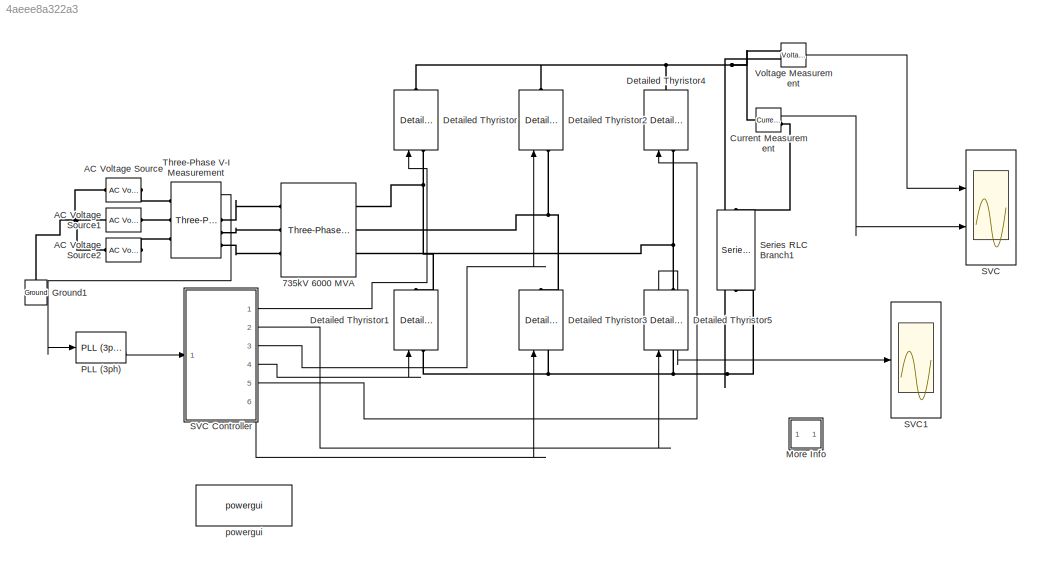
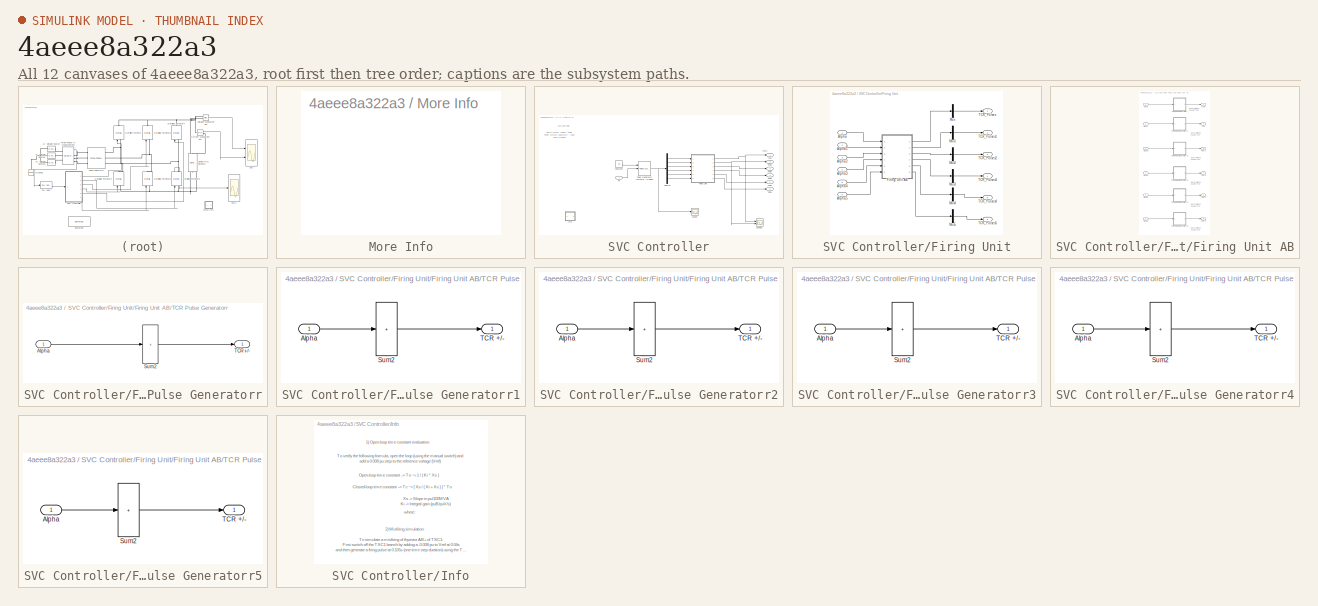
[diagram: thumbnail index - all 12 canvases of the model, root first then tree order]
MODEL slx_4aeee8a322a3
KIND model
CONFIG AbsTol = 1e-4
CONFIG EnableMultiTasking = off
CONFIG FixedStep = Ts
CONFIG MaxStep = Ts
CONFIG MinStep = auto
CONFIG PreLoadFcn = Ts=50e-6;  
CONFIG RelTol = 1e-4
CONFIG SampleTimeConstraint = Unconstrained
CONFIG Solver = VariableStepAuto
CONFIG SolverName = VariableStepAuto
CONFIG StartTime = 0.0
CONFIG StopTime = 0.3
BLOCK [Reference] 735kV 6000 MVA   REF=powerlib/Elements/Three-Phase
Series RLC Branch
  AttributesFormatString = \n
  Ports = [0, 0, 0, 0, 0, 3, 3]
  SourceBlock = powerlib/Elements/Three-Phase\nSeries RLC Branch
  SourceProductBaseCode = PS
  SourceType = Three-Phase Series RLC Branch
BLOCK [Reference] AC Voltage Source  REF=powerlib/Electrical
Sources/AC Voltage Source
  Ports = [0, 0, 0, 0, 0, 1, 1]
  SourceBlock = powerlib/Electrical\nSources/AC Voltage Source
  SourceProductBaseCode = PS
  SourceType = AC Voltage Source
BLOCK [Reference] AC Voltage Source1  REF=powerlib/Electrical
Sources/AC Voltage Source
  Ports = [0, 0, 0, 0, 0, 1, 1]
  SourceBlock = powerlib/Electrical\nSources/AC Voltage Source
  SourceProductBaseCode = PS
  SourceType = AC Voltage Source
BLOCK [Reference] AC Voltage Source2  REF=powerlib/Electrical
Sources/AC Voltage Source
  Ports = [0, 0, 0, 0, 0, 1, 1]
  SourceBlock = powerlib/Electrical\nSources/AC Voltage Source
  SourceProductBaseCode = PS
  SourceType = AC Voltage Source
BLOCK [Reference] Current Measurement  REF=powerlib/Measurements/Current Measurement
  Ports = [0, 1, 0, 0, 0, 1, 1]
  SourceBlock = powerlib/Measurements/Current Measurement
  SourceProductBaseCode = PS
  SourceType = Current Measurement
  UserDataPersistent = on
BLOCK [Reference] Detailed Thyristor  REF=powerlib/Power
Electronics/Detailed Thyristor
  Ports = [1, 0, 0, 0, 0, 1, 1]
  SourceBlock = powerlib/Power\nElectronics/Detailed Thyristor
  SourceProductBaseCode = PS
  SourceType = Detailed Thyristor
BLOCK [Reference] Detailed Thyristor1  REF=powerlib/Power
Electronics/Detailed Thyristor
  Ports = [1, 0, 0, 0, 0, 1, 1]
  SourceBlock = powerlib/Power\nElectronics/Detailed Thyristor
  SourceProductBaseCode = PS
  SourceType = Detailed Thyristor
BLOCK [Reference] Detailed Thyristor2  REF=powerlib/Power
Electronics/Detailed Thyristor
  Ports = [1, 0, 0, 0, 0, 1, 1]
  SourceBlock = powerlib/Power\nElectronics/Detailed Thyristor
  SourceProductBaseCode = PS
  SourceType = Detailed Thyristor
BLOCK [Reference] Detailed Thyristor3  REF=powerlib/Power
Electronics/Detailed Thyristor
  Ports = [1, 0, 0, 0, 0, 1, 1]
  SourceBlock = powerlib/Power\nElectronics/Detailed Thyristor
  SourceProductBaseCode = PS
  SourceType = Detailed Thyristor
BLOCK [Reference] Detailed Thyristor4  REF=powerlib/Power
Electronics/Detailed Thyristor
  Ports = [1, 0, 0, 0, 0, 1, 1]
  SourceBlock = powerlib/Power\nElectronics/Detailed Thyristor
  SourceProductBaseCode = PS
  SourceType = Detailed Thyristor
BLOCK [Reference] Detailed Thyristor5  REF=powerlib/Power
Electronics/Detailed Thyristor
  Ports = [1, 1, 0, 0, 0, 1, 1]
  SourceBlock = powerlib/Power\nElectronics/Detailed Thyristor
  SourceProductBaseCode = PS
  SourceType = Detailed Thyristor
BLOCK [Reference] Ground1  REF=powerlib/Elements/Ground
  Ports = [0, 0, 0, 0, 0, 1]
  SourceBlock = powerlib/Elements/Ground
  SourceProductBaseCode = PS
  SourceType = Ground
BLOCK [SubSystem] More Info
  OpenFcn = showdemo(bdroot(gcb))
  Ports = []
  RequestExecContextInheritance = off
BLOCK [Reference] PLL (3ph)  REF=powerlib_meascontrol/PLL/PLL
(3ph)
  Ports = [1, 2]
  SourceBlock = powerlib_meascontrol/PLL/PLL\n(3ph)
  SourceProductBaseCode = PS
  SourceType = PLL (3ph)
BLOCK [Scope] SVC
  Floating = off
  NumInputPorts = 2
  Ports = [2]
  ScopeSpecificationString = Simulink.scopes.TimeScopeBlockCfg('CurrentConfiguration', extmgr.ConfigurationSet(extmgr.Configuration('Core','General UI',true),extmgr.Configuration('Core','Source UI',true),extmgr.Configuration('Sources','WiredSimulink',true,'DataLogging',true,'DataLoggingVariableName','VIabc_Prim','DataLoggingSaveFormat','StructureWithTime','SampleTime','Ts','DataLoggingDecimation','1'),extmgr.Configuration('Vi...<+2355ch>
BLOCK [SubSystem] SVC Controller
  Ports = [1, 6]
  RequestExecContextInheritance = off
BLOCK [Constant] SVC Controller/Constant
  Value = 30
BLOCK [Demux] SVC Controller/Demux
  Outputs = 6
  Ports = [1, 6]
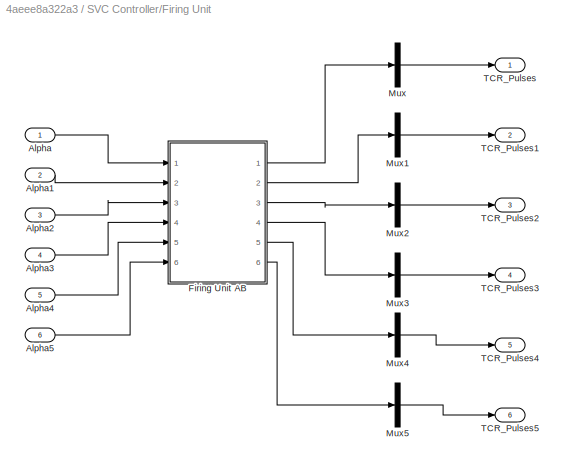
BLOCK [SubSystem] SVC Controller/Firing Unit
  Ports = [6, 6]
  RequestExecContextInheritance = off
BLOCK [Inport] SVC Controller/Firing Unit/Alpha
  PortDimensions = 1
BLOCK [Inport] SVC Controller/Firing Unit/Alpha1
  Port = 2
  PortDimensions = 1
BLOCK [Inport] SVC Controller/Firing Unit/Alpha2
  Port = 3
  PortDimensions = 1
BLOCK [Inport] SVC Controller/Firing Unit/Alpha3
  Port = 4
  PortDimensions = 1
BLOCK [Inport] SVC Controller/Firing Unit/Alpha4
  Port = 5
  PortDimensions = 1
BLOCK [Inport] SVC Controller/Firing Unit/Alpha5
  Port = 6
  PortDimensions = 1
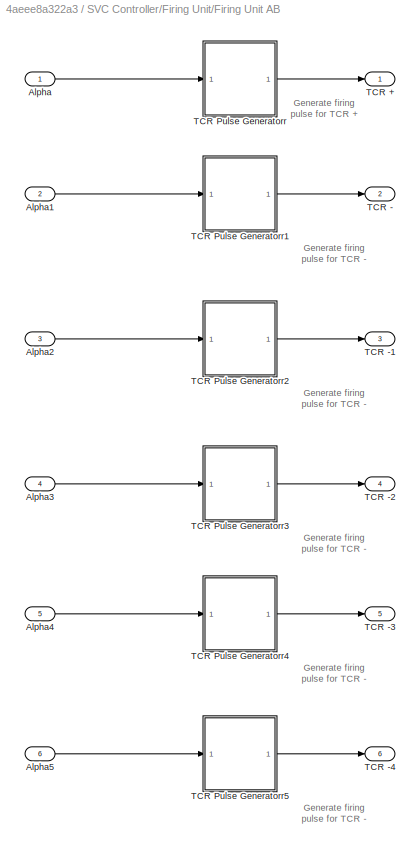
BLOCK [SubSystem] SVC Controller/Firing Unit/Firing Unit AB
  Ports = [6, 6]
  RequestExecContextInheritance = off
BLOCK [Inport] SVC Controller/Firing Unit/Firing Unit AB/Alpha
  PortDimensions = 1
BLOCK [Inport] SVC Controller/Firing Unit/Firing Unit AB/Alpha1
  Port = 2
  PortDimensions = 1
BLOCK [Inport] SVC Controller/Firing Unit/Firing Unit AB/Alpha2
  Port = 3
  PortDimensions = 1
BLOCK [Inport] SVC Controller/Firing Unit/Firing Unit AB/Alpha3
  Port = 4
  PortDimensions = 1
BLOCK [Inport] SVC Controller/Firing Unit/Firing Unit AB/Alpha4
  Port = 5
  PortDimensions = 1
BLOCK [Inport] SVC Controller/Firing Unit/Firing Unit AB/Alpha5
  Port = 6
  PortDimensions = 1
BLOCK [Outport] SVC Controller/Firing Unit/Firing Unit AB/TCR +
  VectorParamsAs1DForOutWhenUnconnected = off
BLOCK [Outport] SVC Controller/Firing Unit/Firing Unit AB/TCR -
  Port = 2
  VectorParamsAs1DForOutWhenUnconnected = off
BLOCK [Outport] SVC Controller/Firing Unit/Firing Unit AB/TCR -1
  Port = 3
  VectorParamsAs1DForOutWhenUnconnected = off
BLOCK [Outport] SVC Controller/Firing Unit/Firing Unit AB/TCR -2
  Port = 4
  VectorParamsAs1DForOutWhenUnconnected = off
BLOCK [Outport] SVC Controller/Firing Unit/Firing Unit AB/TCR -3
  Port = 5
  VectorParamsAs1DForOutWhenUnconnected = off
BLOCK [Outport] SVC Controller/Firing Unit/Firing Unit AB/TCR -4
  Port = 6
  VectorParamsAs1DForOutWhenUnconnected = off
BLOCK [SubSystem] SVC Controller/Firing Unit/Firing Unit AB/TCR Pulse Generatorr
  Ports = [1, 1]
  RequestExecContextInheritance = off
BLOCK [Inport] SVC Controller/Firing Unit/Firing Unit AB/TCR Pulse Generatorr/Alpha
  PortDimensions = 1
BLOCK [Sum] SVC Controller/Firing Unit/Firing Unit AB/TCR Pulse Generatorr/Sum2
  IconShape = rectangular
  InputSameDT = on
  Inputs = +
  OutDataTypeStr = Inherit: Same as first input
  Ports = [1, 1]
  SaturateOnIntegerOverflow = on
BLOCK [Outport] SVC Controller/Firing Unit/Firing Unit AB/TCR Pulse Generatorr/TCR +//-
  VectorParamsAs1DForOutWhenUnconnected = off
BLOCK [SubSystem] SVC Controller/Firing Unit/Firing Unit AB/TCR Pulse Generatorr1
  Ports = [1, 1]
  RequestExecContextInheritance = off
BLOCK [Inport] SVC Controller/Firing Unit/Firing Unit AB/TCR Pulse Generatorr1/Alpha
  PortDimensions = 1
BLOCK [Sum] SVC Controller/Firing Unit/Firing Unit AB/TCR Pulse Generatorr1/Sum2
  IconShape = rectangular
  InputSameDT = on
  Inputs = +
  OutDataTypeStr = Inherit: Same as first input
  Ports = [1, 1]
  SaturateOnIntegerOverflow = on
BLOCK [Outport] SVC Controller/Firing Unit/Firing Unit AB/TCR Pulse Generatorr1/TCR +//-
  VectorParamsAs1DForOutWhenUnconnected = off
BLOCK [SubSystem] SVC Controller/Firing Unit/Firing Unit AB/TCR Pulse Generatorr2
  Ports = [1, 1]
  RequestExecContextInheritance = off
BLOCK [Inport] SVC Controller/Firing Unit/Firing Unit AB/TCR Pulse Generatorr2/Alpha
  PortDimensions = 1
BLOCK [Sum] SVC Controller/Firing Unit/Firing Unit AB/TCR Pulse Generatorr2/Sum2
  IconShape = rectangular
  InputSameDT = on
  Inputs = +
  OutDataTypeStr = Inherit: Same as first input
  Ports = [1, 1]
  SaturateOnIntegerOverflow = on
BLOCK [Outport] SVC Controller/Firing Unit/Firing Unit AB/TCR Pulse Generatorr2/TCR +//-
  VectorParamsAs1DForOutWhenUnconnected = off
BLOCK [SubSystem] SVC Controller/Firing Unit/Firing Unit AB/TCR Pulse Generatorr3
  Ports = [1, 1]
  RequestExecContextInheritance = off
BLOCK [Inport] SVC Controller/Firing Unit/Firing Unit AB/TCR Pulse Generatorr3/Alpha
  PortDimensions = 1
BLOCK [Sum] SVC Controller/Firing Unit/Firing Unit AB/TCR Pulse Generatorr3/Sum2
  IconShape = rectangular
  InputSameDT = on
  Inputs = +
  OutDataTypeStr = Inherit: Same as first input
  Ports = [1, 1]
  SaturateOnIntegerOverflow = on
BLOCK [Outport] SVC Controller/Firing Unit/Firing Unit AB/TCR Pulse Generatorr3/TCR +//-
  VectorParamsAs1DForOutWhenUnconnected = off
BLOCK [SubSystem] SVC Controller/Firing Unit/Firing Unit AB/TCR Pulse Generatorr4
  Ports = [1, 1]
  RequestExecContextInheritance = off
BLOCK [Inport] SVC Controller/Firing Unit/Firing Unit AB/TCR Pulse Generatorr4/Alpha
  PortDimensions = 1
BLOCK [Sum] SVC Controller/Firing Unit/Firing Unit AB/TCR Pulse Generatorr4/Sum2
  IconShape = rectangular
  InputSameDT = on
  Inputs = +
  OutDataTypeStr = Inherit: Same as first input
  Ports = [1, 1]
  SaturateOnIntegerOverflow = on
BLOCK [Outport] SVC Controller/Firing Unit/Firing Unit AB/TCR Pulse Generatorr4/TCR +//-
  VectorParamsAs1DForOutWhenUnconnected = off
BLOCK [SubSystem] SVC Controller/Firing Unit/Firing Unit AB/TCR Pulse Generatorr5
  Ports = [1, 1]
  RequestExecContextInheritance = off
BLOCK [Inport] SVC Controller/Firing Unit/Firing Unit AB/TCR Pulse Generatorr5/Alpha
  PortDimensions = 1
BLOCK [Sum] SVC Controller/Firing Unit/Firing Unit AB/TCR Pulse Generatorr5/Sum2
  IconShape = rectangular
  InputSameDT = on
  Inputs = +
  OutDataTypeStr = Inherit: Same as first input
  Ports = [1, 1]
  SaturateOnIntegerOverflow = on
BLOCK [Outport] SVC Controller/Firing Unit/Firing Unit AB/TCR Pulse Generatorr5/TCR +//-
  VectorParamsAs1DForOutWhenUnconnected = off
BLOCK [Mux] SVC Controller/Firing Unit/Mux
  DisplayOption = bar
  Inputs = 1
  Ports = [1, 1]
BLOCK [Mux] SVC Controller/Firing Unit/Mux1
  DisplayOption = bar
  Inputs = 1
  Ports = [1, 1]
BLOCK [Mux] SVC Controller/Firing Unit/Mux2
  DisplayOption = bar
  Inputs = 1
  Ports = [1, 1]
BLOCK [Mux] SVC Controller/Firing Unit/Mux3
  DisplayOption = bar
  Inputs = 1
  Ports = [1, 1]
BLOCK [Mux] SVC Controller/Firing Unit/Mux4
  DisplayOption = bar
  Inputs = 1
  Ports = [1, 1]
BLOCK [Mux] SVC Controller/Firing Unit/Mux5
  DisplayOption = bar
  Inputs = 1
  Ports = [1, 1]
BLOCK [Outport] SVC Controller/Firing Unit/TCR_Pulses
  VectorParamsAs1DForOutWhenUnconnected = off
BLOCK [Outport] SVC Controller/Firing Unit/TCR_Pulses1
  Port = 2
  VectorParamsAs1DForOutWhenUnconnected = off
BLOCK [Outport] SVC Controller/Firing Unit/TCR_Pulses2
  Port = 3
  VectorParamsAs1DForOutWhenUnconnected = off
BLOCK [Outport] SVC Controller/Firing Unit/TCR_Pulses3
  Port = 4
  VectorParamsAs1DForOutWhenUnconnected = off
BLOCK [Outport] SVC Controller/Firing Unit/TCR_Pulses4
  Port = 5
  VectorParamsAs1DForOutWhenUnconnected = off
BLOCK [Outport] SVC Controller/Firing Unit/TCR_Pulses5
  Port = 6
  VectorParamsAs1DForOutWhenUnconnected = off
BLOCK [SubSystem] SVC Controller/Info
  Ports = []
  RequestExecContextInheritance = off
BLOCK [Reference] SVC Controller/Pulse Generator (Thyristor, 6-Pulse)  REF=powerlib_meascontrol/Pulse & Signal
Generators/Pulse Generator
(Thyristor, 12-Pulse)
  Ports = [3, 1]
  SourceBlock = powerlib_meascontrol/Pulse & Signal\nGenerators/Pulse Generator\n(Thyristor, 12-Pulse)
  SourceProductBaseCode = PS
  SourceType = Pulse Generator (Thyristor)
BLOCK [Scope] SVC Controller/Scope
  Floating = off
  NumInputPorts = 1
  Ports = [1]
  ScopeSpecificationString = Simulink.scopes.TimeScopeBlockCfg('CurrentConfiguration', extmgr.ConfigurationSet(extmgr.Configuration('Core','General UI',true),extmgr.Configuration('Core','Source UI',true),extmgr.Configuration('Sources','WiredSimulink',true,'DataLoggingVariableName','ScopeData1'),extmgr.Configuration('Visuals','Time Domain',true,'SerializedDisplays',{struct('MinYLimReal','-1.00000','MaxYLimReal','1.00000','YLab...<+1673ch>
BLOCK [Scope] SVC Controller/Scope1
  Floating = off
  NumInputPorts = 2
  Ports = [2]
  ScopeSpecificationString = Simulink.scopes.TimeScopeBlockCfg('CurrentConfiguration', extmgr.ConfigurationSet(extmgr.Configuration('Core','General UI',true),extmgr.Configuration('Core','Source UI',true),extmgr.Configuration('Sources','WiredSimulink',true,'DataLoggingVariableName','ScopeData2'),extmgr.Configuration('Visuals','Time Domain',true,'SerializedDisplays',{struct('MinYLimReal','-0.125','MaxYLimReal','1.125','YLabelRe...<+1447ch>
BLOCK [Outport] SVC Controller/TCR
  VectorParamsAs1DForOutWhenUnconnected = off
BLOCK [Outport] SVC Controller/TCR1
  Port = 2
  VectorParamsAs1DForOutWhenUnconnected = off
BLOCK [Outport] SVC Controller/TCR2
  Port = 3
  VectorParamsAs1DForOutWhenUnconnected = off
BLOCK [Outport] SVC Controller/TCR3
  Port = 4
  VectorParamsAs1DForOutWhenUnconnected = off
BLOCK [Outport] SVC Controller/TCR4
  Port = 5
  VectorParamsAs1DForOutWhenUnconnected = off
BLOCK [Outport] SVC Controller/TCR5
  Port = 6
  VectorParamsAs1DForOutWhenUnconnected = off
BLOCK [Inport] SVC Controller/wt
  PortDimensions = 1
BLOCK [Scope] SVC1
  Floating = off
  NumInputPorts = 1
  Ports = [1]
  ScopeSpecificationString = Simulink.scopes.TimeScopeBlockCfg('CurrentConfiguration', extmgr.ConfigurationSet(extmgr.Configuration('Core','General UI',true),extmgr.Configuration('Core','Source UI',true),extmgr.Configuration('Sources','WiredSimulink',true,'DataLogging',true,'DataLoggingVariableName','ScopeData1','DataLoggingSaveFormat','StructureWithTime','SampleTime','Ts','DataLoggingDecimation','1'),extmgr.Configuration('Vi...<+2394ch>
BLOCK [Reference] Series RLC Branch1  REF=powerlib/Elements/Series RLC Branch
  Ports = [0, 0, 0, 0, 0, 1, 1]
  SourceBlock = powerlib/Elements/Series RLC Branch
  SourceProductBaseCode = PS
  SourceType = Series RLC Branch
BLOCK [Reference] Three-Phase V-I Measurement  REF=powerlib/Measurements/Three-Phase
V-I Measurement
  Ports = [0, 2, 0, 0, 0, 3, 3]
  SourceBlock = powerlib/Measurements/Three-Phase\nV-I Measurement
  SourceProductBaseCode = PS
  SourceType = Three-Phase VI Measurement
BLOCK [Reference] Voltage Measurement  REF=powerlib/Measurements/Voltage Measurement
  Ports = [0, 1, 0, 0, 0, 2]
  SourceBlock = powerlib/Measurements/Voltage Measurement
  SourceProductBaseCode = PS
  SourceType = Voltage Measurement
  UserDataPersistent = on
BLOCK [Reference] powergui  REF=powerlib/powergui
  Ports = []
  Priority = 2
  SourceBlock = powerlib/powergui
  SourceProductBaseCode = PS
  SourceType = PSB option menu block
ANNOTATION SVC Controller: Pierre Giroux, Gilbert Sybille Power System Laboratory, IREQ Hydro-Quebec
ANNOTATION SVC Controller: Pulses
ANNOTATION SVC Controller: SVC Controller
ANNOTATION SVC Controller/Firing Unit/Firing Unit AB: Generate firing pulse for TCR +
ANNOTATION SVC Controller/Firing Unit/Firing Unit AB: Generate firing pulse for TCR -
ANNOTATION SVC Controller/Info: 1) Open-loop time constant evaluation:
ANNOTATION SVC Controller/Info: 2) Misfiring simulation:
ANNOTATION SVC Controller/Info: Closed-loop time constant --> Tc ~= [ Xs / ( Xr + Xs ) ] * To
ANNOTATION SVC Controller/Info: Open-loop time constant --> To ~= 1 / ( Ki * Xs )
ANNOTATION SVC Controller/Info: To simulate a misfiring of thyristor AB+ of TSC1: First switch off the TSC1 branch by adding a -0.008 pu to Vref at 0.04s and then generate a firing pulse at 0.105s (one time step duration) using the Timer block
ANNOTATION SVC Controller/Info: To verify the following formula, open the loop (using the manual switch) and add a 0.008 pu step to the reference voltage (Vref)
ANNOTATION SVC Controller/Info: Xs -> Slope in pu/100MVA Ki -> Integral gain (puB/puV/s)
ANNOTATION SVC Controller/Info: where:
LINE Current Measurement:1 -> SVC:2
LINE Detailed Thyristor5:1 -> SVC1:1
LINE PLL (3ph):2 -> SVC Controller:1
LINE SVC Controller/Constant:1 -> SVC Controller/Pulse Generator (Thyristor, 6-Pulse):1
LINE SVC Controller/Demux:1 -> SVC Controller/Firing Unit:1
LINE SVC Controller/Demux:2 -> SVC Controller/Firing Unit:2
LINE SVC Controller/Demux:3 -> SVC Controller/Firing Unit:3
LINE SVC Controller/Demux:4 -> SVC Controller/Firing Unit:4
LINE SVC Controller/Demux:5 -> SVC Controller/Firing Unit:5
LINE SVC Controller/Demux:6 -> SVC Controller/Firing Unit:6
LINE SVC Controller/Firing Unit/Alpha1:1 -> SVC Controller/Firing Unit/Firing Unit AB:2
LINE SVC Controller/Firing Unit/Alpha2:1 -> SVC Controller/Firing Unit/Firing Unit AB:3
LINE SVC Controller/Firing Unit/Alpha3:1 -> SVC Controller/Firing Unit/Firing Unit AB:4
LINE SVC Controller/Firing Unit/Alpha4:1 -> SVC Controller/Firing Unit/Firing Unit AB:5
LINE SVC Controller/Firing Unit/Alpha5:1 -> SVC Controller/Firing Unit/Firing Unit AB:6
LINE SVC Controller/Firing Unit/Alpha:1 -> SVC Controller/Firing Unit/Firing Unit AB:1
LINE SVC Controller/Firing Unit/Firing Unit AB/Alpha1:1 -> SVC Controller/Firing Unit/Firing Unit AB/TCR Pulse Generatorr1:1
LINE SVC Controller/Firing Unit/Firing Unit AB/Alpha2:1 -> SVC Controller/Firing Unit/Firing Unit AB/TCR Pulse Generatorr2:1
LINE SVC Controller/Firing Unit/Firing Unit AB/Alpha3:1 -> SVC Controller/Firing Unit/Firing Unit AB/TCR Pulse Generatorr3:1
LINE SVC Controller/Firing Unit/Firing Unit AB/Alpha4:1 -> SVC Controller/Firing Unit/Firing Unit AB/TCR Pulse Generatorr4:1
LINE SVC Controller/Firing Unit/Firing Unit AB/Alpha5:1 -> SVC Controller/Firing Unit/Firing Unit AB/TCR Pulse Generatorr5:1
LINE SVC Controller/Firing Unit/Firing Unit AB/Alpha:1 -> SVC Controller/Firing Unit/Firing Unit AB/TCR Pulse Generatorr:1
LINE SVC Controller/Firing Unit/Firing Unit AB/TCR Pulse Generatorr/Alpha:1 -> SVC Controller/Firing Unit/Firing Unit AB/TCR Pulse Generatorr/Sum2:1
LINE SVC Controller/Firing Unit/Firing Unit AB/TCR Pulse Generatorr/Sum2:1 -> SVC Controller/Firing Unit/Firing Unit AB/TCR Pulse Generatorr/TCR +//-:1
LINE SVC Controller/Firing Unit/Firing Unit AB/TCR Pulse Generatorr1/Alpha:1 -> SVC Controller/Firing Unit/Firing Unit AB/TCR Pulse Generatorr1/Sum2:1
LINE SVC Controller/Firing Unit/Firing Unit AB/TCR Pulse Generatorr1/Sum2:1 -> SVC Controller/Firing Unit/Firing Unit AB/TCR Pulse Generatorr1/TCR +//-:1
LINE SVC Controller/Firing Unit/Firing Unit AB/TCR Pulse Generatorr1:1 -> SVC Controller/Firing Unit/Firing Unit AB/TCR -:1
LINE SVC Controller/Firing Unit/Firing Unit AB/TCR Pulse Generatorr2/Alpha:1 -> SVC Controller/Firing Unit/Firing Unit AB/TCR Pulse Generatorr2/Sum2:1
LINE SVC Controller/Firing Unit/Firing Unit AB/TCR Pulse Generatorr2/Sum2:1 -> SVC Controller/Firing Unit/Firing Unit AB/TCR Pulse Generatorr2/TCR +//-:1
LINE SVC Controller/Firing Unit/Firing Unit AB/TCR Pulse Generatorr2:1 -> SVC Controller/Firing Unit/Firing Unit AB/TCR -1:1
LINE SVC Controller/Firing Unit/Firing Unit AB/TCR Pulse Generatorr3/Alpha:1 -> SVC Controller/Firing Unit/Firing Unit AB/TCR Pulse Generatorr3/Sum2:1
LINE SVC Controller/Firing Unit/Firing Unit AB/TCR Pulse Generatorr3/Sum2:1 -> SVC Controller/Firing Unit/Firing Unit AB/TCR Pulse Generatorr3/TCR +//-:1
LINE SVC Controller/Firing Unit/Firing Unit AB/TCR Pulse Generatorr3:1 -> SVC Controller/Firing Unit/Firing Unit AB/TCR -2:1
LINE SVC Controller/Firing Unit/Firing Unit AB/TCR Pulse Generatorr4/Alpha:1 -> SVC Controller/Firing Unit/Firing Unit AB/TCR Pulse Generatorr4/Sum2:1
LINE SVC Controller/Firing Unit/Firing Unit AB/TCR Pulse Generatorr4/Sum2:1 -> SVC Controller/Firing Unit/Firing Unit AB/TCR Pulse Generatorr4/TCR +//-:1
LINE SVC Controller/Firing Unit/Firing Unit AB/TCR Pulse Generatorr4:1 -> SVC Controller/Firing Unit/Firing Unit AB/TCR -3:1
LINE SVC Controller/Firing Unit/Firing Unit AB/TCR Pulse Generatorr5/Alpha:1 -> SVC Controller/Firing Unit/Firing Unit AB/TCR Pulse Generatorr5/Sum2:1
LINE SVC Controller/Firing Unit/Firing Unit AB/TCR Pulse Generatorr5/Sum2:1 -> SVC Controller/Firing Unit/Firing Unit AB/TCR Pulse Generatorr5/TCR +//-:1
LINE SVC Controller/Firing Unit/Firing Unit AB/TCR Pulse Generatorr5:1 -> SVC Controller/Firing Unit/Firing Unit AB/TCR -4:1
LINE SVC Controller/Firing Unit/Firing Unit AB/TCR Pulse Generatorr:1 -> SVC Controller/Firing Unit/Firing Unit AB/TCR +:1
LINE SVC Controller/Firing Unit/Firing Unit AB:1 -> SVC Controller/Firing Unit/Mux:1
LINE SVC Controller/Firing Unit/Firing Unit AB:2 -> SVC Controller/Firing Unit/Mux1:1
LINE SVC Controller/Firing Unit/Firing Unit AB:3 -> SVC Controller/Firing Unit/Mux2:1
LINE SVC Controller/Firing Unit/Firing Unit AB:4 -> SVC Controller/Firing Unit/Mux3:1
LINE SVC Controller/Firing Unit/Firing Unit AB:5 -> SVC Controller/Firing Unit/Mux4:1
LINE SVC Controller/Firing Unit/Firing Unit AB:6 -> SVC Controller/Firing Unit/Mux5:1
LINE SVC Controller/Firing Unit/Mux1:1 -> SVC Controller/Firing Unit/TCR_Pulses1:1
LINE SVC Controller/Firing Unit/Mux2:1 -> SVC Controller/Firing Unit/TCR_Pulses2:1
LINE SVC Controller/Firing Unit/Mux3:1 -> SVC Controller/Firing Unit/TCR_Pulses3:1
LINE SVC Controller/Firing Unit/Mux4:1 -> SVC Controller/Firing Unit/TCR_Pulses4:1
LINE SVC Controller/Firing Unit/Mux5:1 -> SVC Controller/Firing Unit/TCR_Pulses5:1
LINE SVC Controller/Firing Unit/Mux:1 -> SVC Controller/Firing Unit/TCR_Pulses:1
NET SVC Controller/Firing Unit:1 -> SVC Controller/Scope1:1, SVC Controller/TCR:1
NET SVC Controller/Firing Unit:2 -> SVC Controller/Scope1:2, SVC Controller/TCR1:1
LINE SVC Controller/Firing Unit:3 -> SVC Controller/TCR2:1
LINE SVC Controller/Firing Unit:4 -> SVC Controller/TCR3:1
LINE SVC Controller/Firing Unit:5 -> SVC Controller/TCR4:1
LINE SVC Controller/Firing Unit:6 -> SVC Controller/TCR5:1
NET SVC Controller/Pulse Generator (Thyristor, 6-Pulse):1 -> SVC Controller/Demux:1, SVC Controller/Scope:1
LINE SVC Controller/wt:1 -> SVC Controller/Pulse Generator (Thyristor, 6-Pulse):2
LINE SVC Controller:1 -> Detailed Thyristor:1
LINE SVC Controller:2 -> Detailed Thyristor5:1
LINE SVC Controller:3 -> Detailed Thyristor2:1
LINE SVC Controller:4 -> Detailed Thyristor1:1
LINE SVC Controller:5 -> Detailed Thyristor4:1
LINE SVC Controller:6 -> Detailed Thyristor3:1
LINE Three-Phase V-I Measurement:1 -> PLL (3ph):1
LINE Voltage Measurement:1 -> SVC:1
PLINE 735kV 6000 MVA :LConn1 -- Three-Phase V-I Measurement:RConn1
PLINE 735kV 6000 MVA :LConn2 -- Three-Phase V-I Measurement:RConn2
PLINE 735kV 6000 MVA :LConn3 -- Three-Phase V-I Measurement:RConn3
PNET net1: 735kV 6000 MVA :RConn1 -- Detailed Thyristor1:RConn1 -- Detailed Thyristor:LConn1
PNET net2: 735kV 6000 MVA :RConn2 -- Detailed Thyristor2:LConn1 -- Detailed Thyristor3:RConn1
PNET net3: 735kV 6000 MVA :RConn3 -- Detailed Thyristor4:LConn1 -- Detailed Thyristor5:RConn1
PNET net4: AC Voltage Source1:LConn1 -- AC Voltage Source2:LConn1 -- AC Voltage Source:LConn1 -- Ground1:LConn1
PLINE AC Voltage Source1:RConn1 -- Three-Phase V-I Measurement:LConn2
PLINE AC Voltage Source2:RConn1 -- Three-Phase V-I Measurement:LConn3
PLINE AC Voltage Source:RConn1 -- Three-Phase V-I Measurement:LConn1
PNET net5: Current Measurement:LConn1 -- Detailed Thyristor2:RConn1 -- Detailed Thyristor4:RConn1 -- Detailed Thyristor:RConn1 -- Voltage Measurement:LConn1
PLINE Current Measurement:RConn1 -- Series RLC Branch1:LConn1
PNET net6: Detailed Thyristor1:LConn1 -- Detailed Thyristor3:LConn1 -- Detailed Thyristor5:LConn1 -- Series RLC Branch1:RConn1 -- Voltage Measurement:LConn2
note: NET lines group one-source signal fan-out (src -> all destinations, sorted); 1:1 wires keep LINE; PNET lines group multi-terminal physical nets as a canonical sorted terminal list (undirected conserving connections); 2-terminal nets keep the pairwise PLINE form
